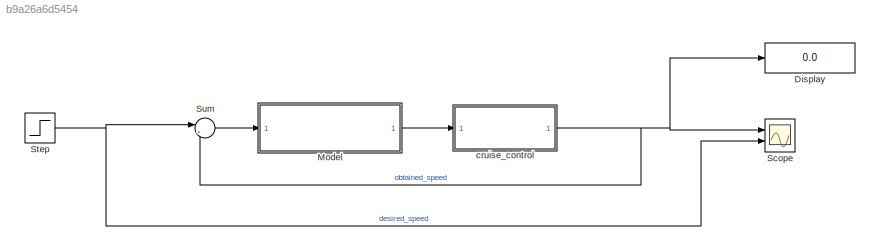
MODEL slx_b9a26a6d5454
KIND model
CONFIG AbsTol = auto
CONFIG EnableMultiTasking = off
CONFIG FixedStep = auto
CONFIG MaxStep = auto
CONFIG MinStep = auto
CONFIG RelTol = 1e-3
CONFIG SampleTimeConstraint = Unconstrained
CONFIG SolverName = VariableStepAuto
CONFIG StartTime = 0.0
CONFIG StopTime = 50
BLOCK [Display] Display
  Decimation = 1
  Ports = [1]
BLOCK [ModelReference] Model
  ModelNameDialog = PI_controller
  ModelReferenceVersion = 1.7
  Ports = [1, 1]
BLOCK [Scope] Scope
  Floating = off
  NumInputPorts = 2
  Ports = [2]
  ScopeSpecificationString = Simulink.scopes.TimeScopeBlockCfg('CurrentConfiguration', extmgr.ConfigurationSet(extmgr.Configuration('Core','General UI',true),extmgr.Configuration('Core','Source UI',true),extmgr.Configuration('Sources','WiredSimulink',true),extmgr.Configuration('Visuals','Time Domain',true,'SerializedDisplays',{struct('MinYLimReal','378.43466','MaxYLimReal','498.14262','YLabelReal','','MinYLimMag','378.43466',...<+2070ch>
BLOCK [Step] Step
  After = u
  SampleTime = 0
BLOCK [Sum] Sum
  Inputs = |+-
  Ports = [2, 1]
BLOCK [ModelReference] cruise_control
  ModelNameDialog = cruise_control
  ModelReferenceVersion = 1.3
  Ports = [1, 1]
LINE Model:1 -> cruise_control:1
NET Step:1 -> Scope:2, Sum:1
LINE Sum:1 -> Model:1
NET cruise_control:1 -> Display:1, Scope:1, Sum:2
note: NET lines group one-source signal fan-out (src -> all destinations, sorted); 1:1 wires keep LINE
